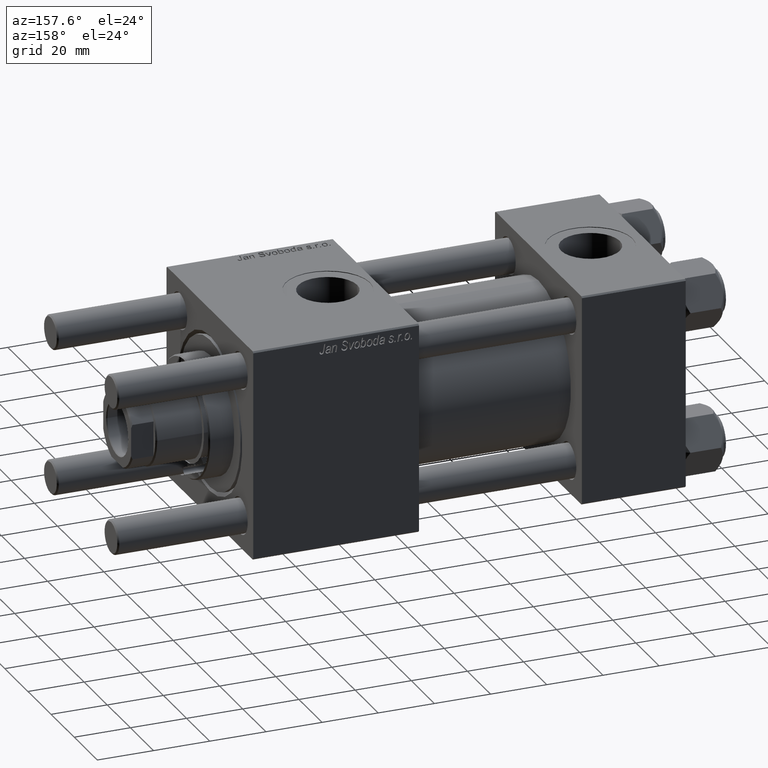
[diagram: clean part render]
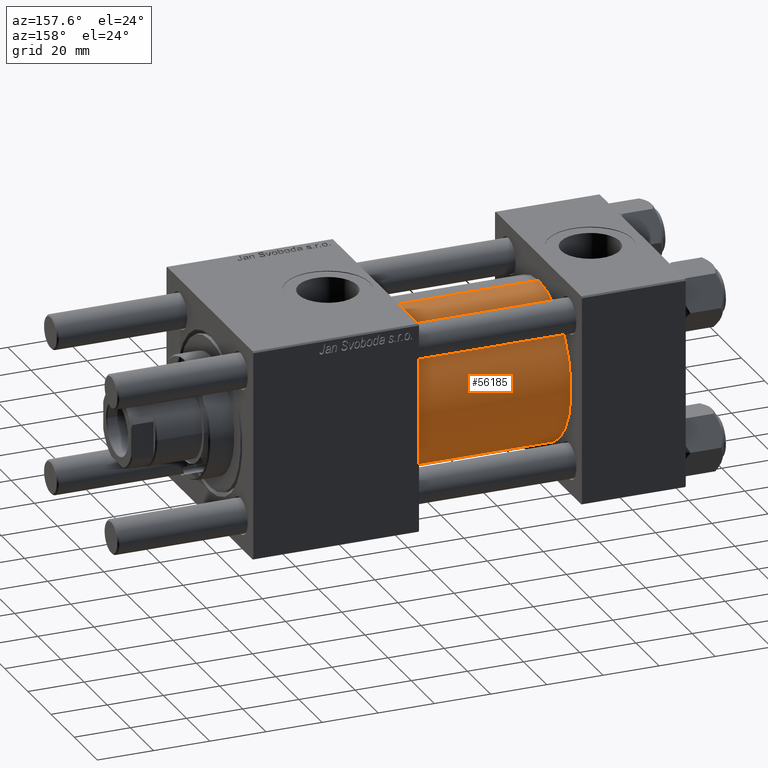
[diagram: same view with one face highlighted and labeled with its STEP entity id]
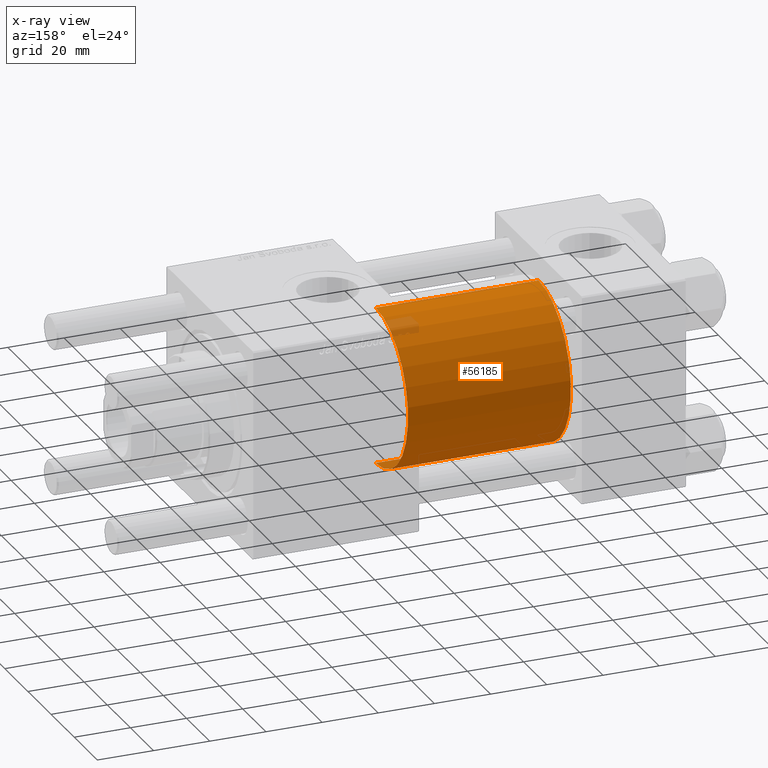
[diagram: x-ray of the same camera — body ghosted, the highlighted face saturated]
A machine part, auxiliary view. The second image highlights one B-rep face of the part: STEP entity #56185.
The next image is the same camera in x-ray: the body ghosted, the highlighted face saturated — about 2% of this face is hidden behind the body in this view.
In plain terms, the highlighted cylindrical surface (partial cylindrical patch) has radius 28 mm, axis along (-1, -0, -0).
Its self-contained STEP definition (entity closure, byte-faithful):
#3109 = CIRCLE ( 'NONE', #37093, 28.00000000000000000 ) ;
#3864 = LINE ( 'NONE', #21119, #44798 ) ;
#5763 = CYLINDRICAL_SURFACE ( 'NONE', #47863, 28.00000000000000000 ) ;
#6573 = CARTESIAN_POINT ( 'NONE',  ( 95.00000000000000000, 8.269258236473776482E-16, -28.00000000000000000 ) ) ;
#8324 = CARTESIAN_POINT ( 'NONE',  ( 37.00000000000000000, -2.602085213965210642E-15, 28.00000000000000000 ) ) ;
#9104 = EDGE_LOOP ( 'NONE', ( #33056, #51252, #44991, #47199 ) ) ;
#10189 = EDGE_CURVE ( 'NONE', #49905, #18141, #3864, .T. ) ;
#15503 = EDGE_CURVE ( 'NONE', #42885, #30578, #36494, .T. ) ;
#16584 = CARTESIAN_POINT ( 'NONE',  ( 37.00000000000000000, 8.269258236473776482E-16, -28.00000000000000000 ) ) ;
#18141 = VERTEX_POINT ( 'NONE', #16584 ) ;
#21119 = CARTESIAN_POINT ( 'NONE',  ( 95.00000000000000000, 8.269258236473776482E-16, -28.00000000000000000 ) ) ;
#22035 = CARTESIAN_POINT ( 'NONE',  ( 95.00000000000000000, -2.602085213965210642E-15, 28.00000000000000000 ) ) ;
#23563 = CARTESIAN_POINT ( 'NONE',  ( 95.00000000000000000, -2.602085213965210642E-15, 28.00000000000000000 ) ) ;
#23592 = DIRECTION ( 'NONE',  ( 1.000000000000000000, 0.000000000000000000, 0.000000000000000000 ) ) ;
#24759 = VECTOR ( 'NONE', #32461, 1000.000000000000000 ) ;
#25283 = DIRECTION ( 'NONE',  ( -1.000000000000000000, -0.000000000000000000, -0.000000000000000000 ) ) ;
#27341 = FACE_OUTER_BOUND ( 'NONE', #9104, .T. ) ;
#29539 = DIRECTION ( 'NONE',  ( 1.000000000000000000, -0.000000000000000000, 0.000000000000000000 ) ) ;
#30370 = EDGE_CURVE ( 'NONE', #49905, #42885, #50786, .T. ) ;
#30578 = VERTEX_POINT ( 'NONE', #8324 ) ;
#32461 = DIRECTION ( 'NONE',  ( -1.000000000000000000, -0.000000000000000000, -0.000000000000000000 ) ) ;
#33052 = EDGE_CURVE ( 'NONE', #18141, #30578, #3109, .T. ) ;
#33056 = ORIENTED_EDGE ( 'NONE', *, *, #30370, .F. ) ;
#36494 = LINE ( 'NONE', #23563, #24759 ) ;
#36516 = CARTESIAN_POINT ( 'NONE',  ( 95.00000000000000000, -2.602085213965210642E-15, 0.000000000000000000 ) ) ;
#37093 = AXIS2_PLACEMENT_3D ( 'NONE', #42481, #29539, #43335 ) ;
#38653 = DIRECTION ( 'NONE',  ( -1.000000000000000000, -0.000000000000000000, -0.000000000000000000 ) ) ;
#38822 = AXIS2_PLACEMENT_3D ( 'NONE', #44331, #23592, #53251 ) ;
#42481 = CARTESIAN_POINT ( 'NONE',  ( 37.00000000000000000, -2.602085213965210642E-15, 0.000000000000000000 ) ) ;
#42814 = DIRECTION ( 'NONE',  ( 0.000000000000000000, 0.000000000000000000, 1.000000000000000000 ) ) ;
#42885 = VERTEX_POINT ( 'NONE', #22035 ) ;
#43335 = DIRECTION ( 'NONE',  ( 0.000000000000000000, 0.000000000000000000, 1.000000000000000000 ) ) ;
#44331 = CARTESIAN_POINT ( 'NONE',  ( 95.00000000000000000, -2.602085213965210642E-15, 0.000000000000000000 ) ) ;
#44798 = VECTOR ( 'NONE', #38653, 1000.000000000000000 ) ;
#44991 = ORIENTED_EDGE ( 'NONE', *, *, #33052, .T. ) ;
#47199 = ORIENTED_EDGE ( 'NONE', *, *, #15503, .F. ) ;
#47863 = AXIS2_PLACEMENT_3D ( 'NONE', #36516, #25283, #42814 ) ;
#49905 = VERTEX_POINT ( 'NONE', #6573 ) ;
#50786 = CIRCLE ( 'NONE', #38822, 28.00000000000000000 ) ;
#51252 = ORIENTED_EDGE ( 'NONE', *, *, #10189, .T. ) ;
#53251 = DIRECTION ( 'NONE',  ( 0.000000000000000000, 0.000000000000000000, -1.000000000000000000 ) ) ;
#56185 = ADVANCED_FACE ( 'NONE', ( #27341 ), #5763, .T. ) ;